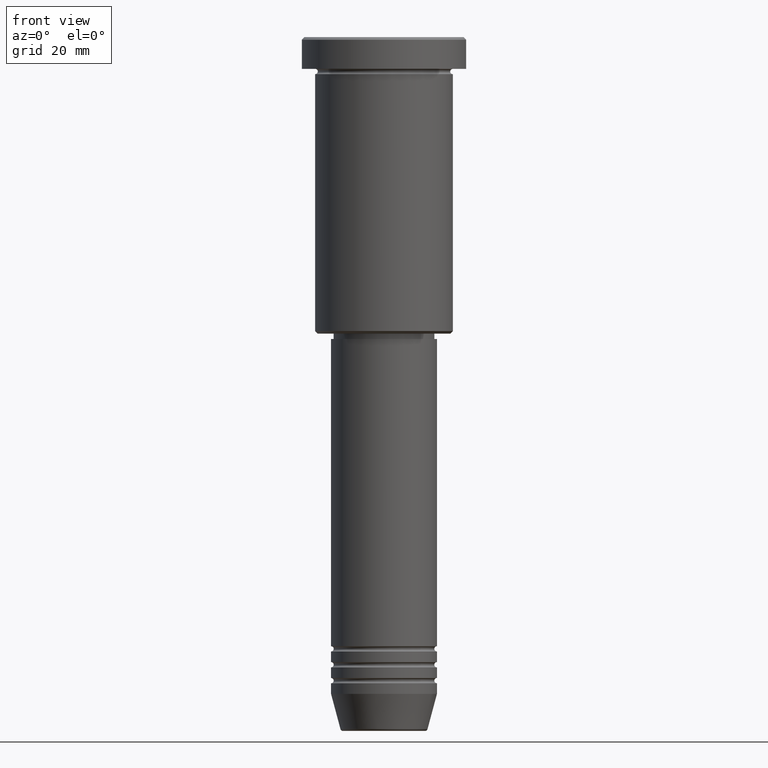
[diagram: clean part render]
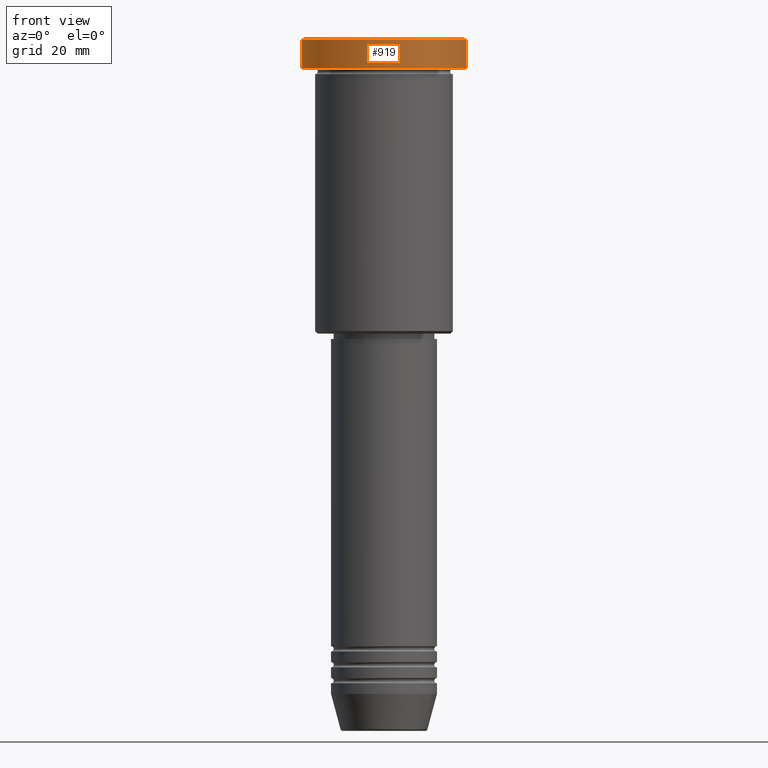
[diagram: same view with one face highlighted and labeled with its STEP entity id]
A machine part, front view. The second image highlights one B-rep face of the part: STEP entity #919.
In plain terms, the highlighted cylindrical surface (partial cylindrical patch) has radius 15.5 mm, axis along (-0, -0, 1).
Its self-contained STEP definition (entity closure, byte-faithful):
#3 = CARTESIAN_POINT ( 'NONE',  ( 15.50000000000000000, 0.000000000000000000, -0.4999999999999709677 ) ) ;
#24 = ORIENTED_EDGE ( 'NONE', *, *, #626, .T. ) ;
#36 = DIRECTION ( 'NONE',  ( -0.000000000000000000, -0.000000000000000000, 1.000000000000000000 ) ) ;
#38 = VERTEX_POINT ( 'NONE', #432 ) ;
#64 = AXIS2_PLACEMENT_3D ( 'NONE', #470, #829, #372 ) ;
#67 = LINE ( 'NONE', #601, #726 ) ;
#90 = EDGE_CURVE ( 'NONE', #414, #38, #67, .T. ) ;
#143 = VERTEX_POINT ( 'NONE', #3 ) ;
#244 = ORIENTED_EDGE ( 'NONE', *, *, #90, .F. ) ;
#285 = DIRECTION ( 'NONE',  ( -0.000000000000000000, -0.000000000000000000, 1.000000000000000000 ) ) ;
#336 = DIRECTION ( 'NONE',  ( -0.000000000000000000, -0.000000000000000000, 1.000000000000000000 ) ) ;
#372 = DIRECTION ( 'NONE',  ( 1.000000000000000000, 0.000000000000000000, 0.000000000000000000 ) ) ;
#386 = AXIS2_PLACEMENT_3D ( 'NONE', #1112, #285, #1123 ) ;
#414 = VERTEX_POINT ( 'NONE', #669 ) ;
#416 = ORIENTED_EDGE ( 'NONE', *, *, #641, .T. ) ;
#419 = EDGE_LOOP ( 'NONE', ( #244, #416, #978, #24 ) ) ;
#432 = CARTESIAN_POINT ( 'NONE',  ( -15.50000000000000000, 1.898202538678397557E-15, -0.4999999999999709677 ) ) ;
#457 = VERTEX_POINT ( 'NONE', #1165 ) ;
#460 = CIRCLE ( 'NONE', #64, 15.50000000000000000 ) ;
#470 = CARTESIAN_POINT ( 'NONE',  ( 0.000000000000000000, 0.000000000000000000, -0.4999999999999709677 ) ) ;
#540 = AXIS2_PLACEMENT_3D ( 'NONE', #849, #36, #683 ) ;
#601 = CARTESIAN_POINT ( 'NONE',  ( -15.50000000000000000, 1.898202538678397557E-15, 0.000000000000000000 ) ) ;
#626 = EDGE_CURVE ( 'NONE', #143, #38, #460, .T. ) ;
#641 = EDGE_CURVE ( 'NONE', #414, #457, #790, .T. ) ;
#660 = CARTESIAN_POINT ( 'NONE',  ( 15.50000000000000000, 0.000000000000000000, 0.000000000000000000 ) ) ;
#669 = CARTESIAN_POINT ( 'NONE',  ( -15.50000000000000000, 1.898202538678397557E-15, -5.999999999999995559 ) ) ;
#683 = DIRECTION ( 'NONE',  ( 1.000000000000000000, 0.000000000000000000, 0.000000000000000000 ) ) ;
#695 = VECTOR ( 'NONE', #1142, 1000.000000000000000 ) ;
#726 = VECTOR ( 'NONE', #336, 1000.000000000000000 ) ;
#790 = CIRCLE ( 'NONE', #386, 15.50000000000000000 ) ;
#829 = DIRECTION ( 'NONE',  ( 0.000000000000000000, 0.000000000000000000, -1.000000000000000000 ) ) ;
#849 = CARTESIAN_POINT ( 'NONE',  ( 0.000000000000000000, 0.000000000000000000, 0.000000000000000000 ) ) ;
#859 = CYLINDRICAL_SURFACE ( 'NONE', #540, 15.50000000000000000 ) ;
#919 = ADVANCED_FACE ( 'NONE', ( #1038 ), #859, .T. ) ;
#978 = ORIENTED_EDGE ( 'NONE', *, *, #1004, .T. ) ;
#1004 = EDGE_CURVE ( 'NONE', #457, #143, #1045, .T. ) ;
#1038 = FACE_OUTER_BOUND ( 'NONE', #419, .T. ) ;
#1045 = LINE ( 'NONE', #660, #695 ) ;
#1112 = CARTESIAN_POINT ( 'NONE',  ( 0.000000000000000000, 0.000000000000000000, -5.999999999999995559 ) ) ;
#1123 = DIRECTION ( 'NONE',  ( 1.000000000000000000, 0.000000000000000000, 0.000000000000000000 ) ) ;
#1142 = DIRECTION ( 'NONE',  ( -0.000000000000000000, -0.000000000000000000, 1.000000000000000000 ) ) ;
#1165 = CARTESIAN_POINT ( 'NONE',  ( 15.50000000000000000, 0.000000000000000000, -5.999999999999995559 ) ) ;